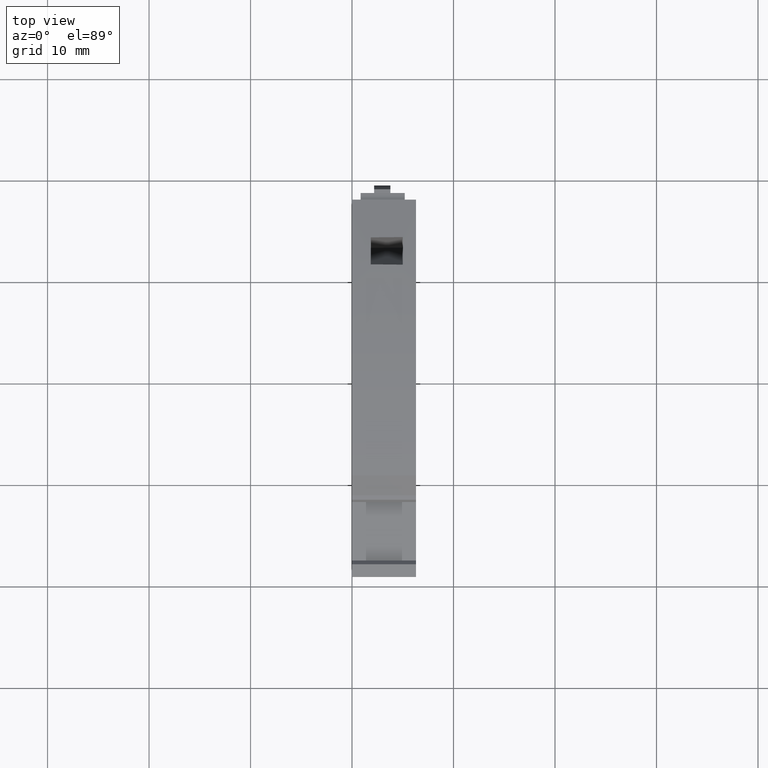
[diagram: clean part render]
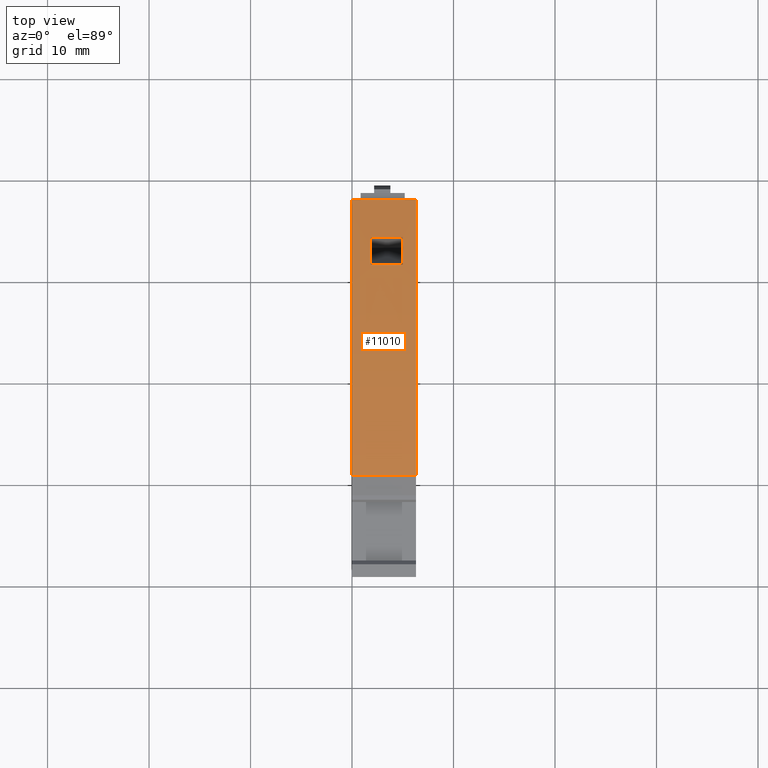
[diagram: same view with one face highlighted and labeled with its STEP entity id]
A machine part, top view. The second image highlights one B-rep face of the part: STEP entity #11010.
In plain terms, the highlighted cylindrical surface (partial cylindrical patch) has radius 100 mm, axis along (-1, -0, -0).
Its self-contained STEP definition (entity closure, byte-faithful):
#9920=CARTESIAN_POINT('',(-23.5582147547322,-7.59914422822726,
-8.38583772216957E-9));
#9930=DIRECTION('',(4.25831752161686E-18,1.10352358519E-9,-1.));
#9940=DIRECTION('',(1.,0.,4.25831752161686E-18));
#9950=AXIS2_PLACEMENT_3D('',#9920,#9930,#9940);
#9960=CYLINDRICAL_SURFACE('',#9950,100.);
#9970=CARTESIAN_POINT('',(-2.08881951211755,86.991326293044,
5.32500027369415));
#9980=DIRECTION('',(-0.98477025453965,-0.173641565676473,
-0.00872653673207711));
#9990=DIRECTION('',(0.173648177666978,-0.9848077530122,
2.19027931940366E-10));
#10000=AXIS2_PLACEMENT_3D('',#9970,#9980,#9990);
#10010=PLANE('',#10000);
#10020=CARTESIAN_POINT('',(-2.62106364968698,90.1844725140739,
1.85000035641818));
#10030=CARTESIAN_POINT('',(-2.62348106012823,90.1849901228621,
2.11250031092473));
#10040=CARTESIAN_POINT('',(-2.62589845339257,90.1855076342176,
2.37500026578198));
#10050=CARTESIAN_POINT('',(-2.62831582948155,90.1860250481491,
2.63750022098977));
#10060=CARTESIAN_POINT('',(-2.63073320557052,90.1865424620806,
2.90000017619757));
#10070=CARTESIAN_POINT('',(-2.63315056448414,90.1870597785882,
3.1625001317559));
#10080=CARTESIAN_POINT('',(-2.63556790622394,90.1875769976806,
3.42500008766464));
#10090=CARTESIAN_POINT('',(-2.63798524796374,90.1880942167731,
3.68750004357338));
#10100=CARTESIAN_POINT('',(-2.64040257252974,90.1886113384504,
3.94999999983252));
#10110=CARTESIAN_POINT('',(-2.64281987992346,90.1891283627213,
4.21249995644192));
#10120=CARTESIAN_POINT('',(-2.64523718731719,90.1896453869923,
4.47499991305132));
#10130=CARTESIAN_POINT('',(-2.64765447753866,90.1901623138569,
4.73749987001099));
#10140=CARTESIAN_POINT('',(-2.65007175058941,90.1906791433239,
4.99999982732075));
#10150=B_SPLINE_CURVE_WITH_KNOTS('',3,(#10020,#10030,#10040,#10050,
#10060,#10070,#10080,#10090,#10100,#10110,#10120,#10130,#10140),
.UNSPECIFIED.,.F.,.F.,(4,3,3,3,4),(0.,0.787534787278701,1.57506957455947
,2.36260436184207,3.1501391491263),.UNSPECIFIED.);
#10160=SURFACE_CURVE('',#10150,(#9960,#10010),.CURVE_3D.);
#10170=CARTESIAN_POINT('',(-2.62106364968697,90.1844725140739,
1.85000031567078));
#10180=VERTEX_POINT('',#10170);
#10190=CARTESIAN_POINT('',(-2.65007175058937,90.1906791433239,
4.99999982731603));
#10200=VERTEX_POINT('',#10190);
#10210=EDGE_CURVE('',#10180,#10200,#10160,.T.);
#10220=ORIENTED_EDGE('',*,*,#10210,.F.);
#10230=CARTESIAN_POINT('',(-23.5582147547322,-7.59914423374488,
4.99999982602747));
#10240=DIRECTION('',(5.04532017820405E-9,-1.09190139121119E-9,1.));
#10250=DIRECTION('',(-1.,0.,5.04532017820405E-9));
#10260=AXIS2_PLACEMENT_3D('',#10230,#10240,#10250);
#10270=CIRCLE('',#10260,100.);
#10280=CARTESIAN_POINT('',(0.071708723092005,89.5688891745328,
4.99999981290485));
#10290=VERTEX_POINT('',#10280);
#10300=EDGE_CURVE('',#10290,#10200,#10270,.T.);
#10310=ORIENTED_EDGE('',*,*,#10300,.T.);
#10320=CARTESIAN_POINT('',(-0.150951756281692,86.9913261006448,
5.32500027612416));
#10330=DIRECTION('',(0.996156766061096,-0.0871524241240942,
-0.00872653424861058));
#10340=DIRECTION('',(0.0871557427477231,0.99619469809174,
1.09931900276339E-10));
#10350=AXIS2_PLACEMENT_3D('',#10320,#10330,#10340);
#10360=PLANE('',#10350);
#10370=CARTESIAN_POINT('',(0.0717087230919427,89.5688891745328,
4.99999987174273));
#10380=CARTESIAN_POINT('',(0.0694570765957392,89.5694367441469,
4.73749990944935));
#10390=CARTESIAN_POINT('',(0.0672054229974241,89.5699842325944,
4.47499994704775));
#10400=CARTESIAN_POINT('',(0.0649537622972448,89.5705316398779,
4.21249998453799));
#10410=CARTESIAN_POINT('',(0.0627021015970655,89.5710790471615,
3.95000002202822));
#10420=CARTESIAN_POINT('',(0.0604504337950154,89.571626373281,
3.68750005941032));
#10430=CARTESIAN_POINT('',(0.0581987588913128,89.5721736182392,
3.42500009668433));
#10440=CARTESIAN_POINT('',(0.0559470839876103,89.5727208631974,
3.16250013395834));
#10450=CARTESIAN_POINT('',(0.0536954019822605,89.5732680269941,
2.90000017112428));
#10460=CARTESIAN_POINT('',(0.0514437128754871,89.5738151096321,
2.63750020818222));
#10470=CARTESIAN_POINT('',(0.0491920237687138,89.5743621922701,
2.37500024524016));
#10480=CARTESIAN_POINT('',(0.0469403275605165,89.5749091937492,
2.11250028219011));
#10490=CARTESIAN_POINT('',(0.0446886242511245,89.5754561140721,
1.85000031903213));
#10500=B_SPLINE_CURVE_WITH_KNOTS('',3,(#10370,#10380,#10390,#10400,
#10410,#10420,#10430,#10440,#10450,#10460,#10470,#10480,#10490),
.UNSPECIFIED.,.F.,.F.,(4,3,3,3,4),(0.,0.787530570540102,1.5750611410791,
2.36259171161685,3.15012228215319),.UNSPECIFIED.);
#10510=SURFACE_CURVE('',#10500,(#9960,#10360),.CURVE_3D.);
#10520=CARTESIAN_POINT('',(0.0446886242510871,89.5754561140721,
1.85000031903317));
#10530=VERTEX_POINT('',#10520);
#10540=EDGE_CURVE('',#10290,#10530,#10510,.T.);
#10550=ORIENTED_EDGE('',*,*,#10540,.F.);
#10560=CARTESIAN_POINT('',(-23.5582147547322,-7.59914423026878,
1.85000028926211));
#10570=DIRECTION('',(-1.26133014451295E-9,-4.68849961233902E-17,1.));
#10580=DIRECTION('',(-1.,0.,-1.26133014451295E-9));
#10590=AXIS2_PLACEMENT_3D('',#10560,#10570,#10580);
#10600=CIRCLE('',#10590,100.);
#10610=EDGE_CURVE('',#10530,#10180,#10600,.T.);
#10620=ORIENTED_EDGE('',*,*,#10610,.F.);
#10630=EDGE_LOOP('',(#10620,#10550,#10310,#10220));
#10640=FACE_BOUND('',#10630,.T.);
#10650=CARTESIAN_POINT('',(3.78649011320283,88.5895615312616,
9.77606678287701E-8));
#10660=DIRECTION('',(4.25831752161686E-18,1.10352358519E-9,-1.));
#10670=VECTOR('',#10660,1.);
#10680=LINE('',#10650,#10670);
#10690=CARTESIAN_POINT('',(3.78649011320286,88.5895615243094,
6.30000004944248));
#10700=VERTEX_POINT('',#10690);
#10710=CARTESIAN_POINT('',(3.78649011320283,88.5895615312616,
9.77606678426478E-8));
#10720=VERTEX_POINT('',#10710);
#10730=EDGE_CURVE('',#10700,#10720,#10680,.T.);
#10740=ORIENTED_EDGE('',*,*,#10730,.T.);
#10750=CARTESIAN_POINT('',(-23.5582147547322,-7.59914423517945,
6.30000001465087));
#10760=DIRECTION('',(-1.27233440234888E-9,-1.58421926328788E-24,1.));
#10770=DIRECTION('',(-1.,0.,-1.27233440234888E-9));
#10780=AXIS2_PLACEMENT_3D('',#10750,#10760,#10770);
#10790=CIRCLE('',#10780,100.);
#10800=CARTESIAN_POINT('',(-23.4620154295483,92.400809493259,
6.30000001477327));
#10810=VERTEX_POINT('',#10800);
#10820=EDGE_CURVE('',#10700,#10810,#10790,.T.);
#10830=ORIENTED_EDGE('',*,*,#10820,.F.);
#10840=CARTESIAN_POINT('',(-23.4620154295483,92.4008095002112,
1.01966469735481E-7));
#10850=DIRECTION('',(4.25831752161686E-18,1.10352358519E-9,-1.));
#10860=VECTOR('',#10850,1.);
#10870=LINE('',#10840,#10860);
#10880=CARTESIAN_POINT('',(-23.4620154295483,92.4008095002112,
1.01966469749358E-7));
#10890=VERTEX_POINT('',#10880);
#10900=EDGE_CURVE('',#10810,#10890,#10870,.T.);
#10910=ORIENTED_EDGE('',*,*,#10900,.F.);
#10920=CARTESIAN_POINT('',(-23.5582147547322,-7.59914422822727,
-8.38583771173296E-9));
#10930=DIRECTION('',(4.25831752161686E-18,1.10352358519E-9,-1.));
#10940=DIRECTION('',(1.,0.,4.25831752161686E-18));
#10950=AXIS2_PLACEMENT_3D('',#10920,#10930,#10940);
#10960=CIRCLE('',#10950,100.);
#10970=EDGE_CURVE('',#10890,#10720,#10960,.T.);
#10980=ORIENTED_EDGE('',*,*,#10970,.F.);
#10990=EDGE_LOOP('',(#10980,#10910,#10830,#10740));
#11000=FACE_OUTER_BOUND('',#10990,.T.);
#11010=ADVANCED_FACE('',(#10640,#11000),#9960,.T.);